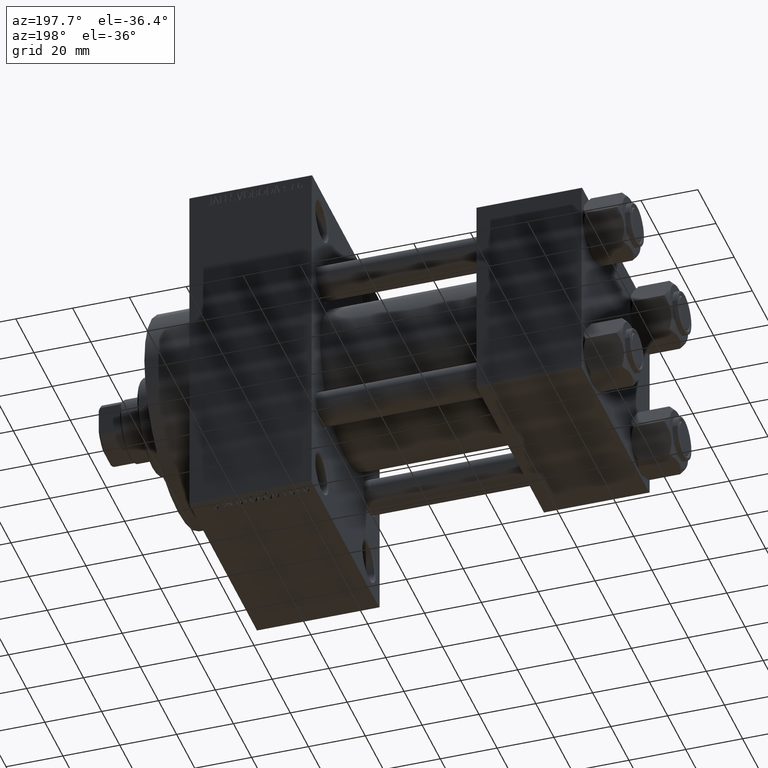
[diagram: clean part render]
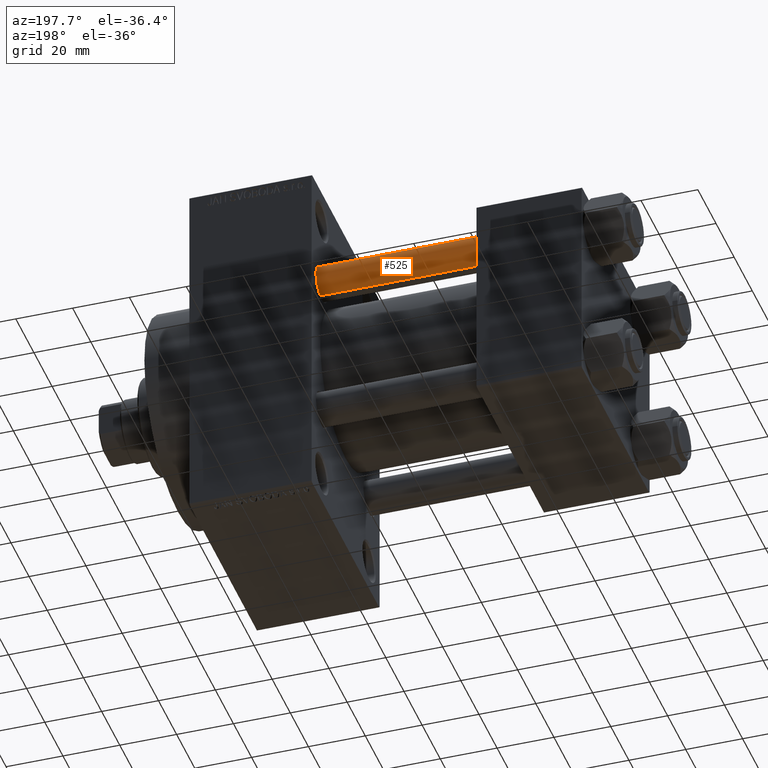
[diagram: same view with one face highlighted and labeled with its STEP entity id]
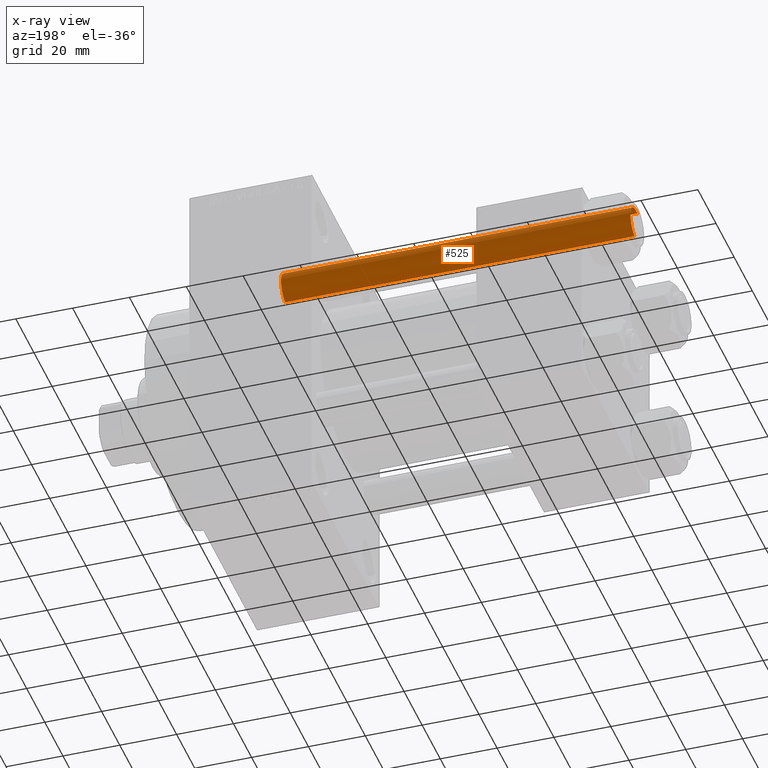
[diagram: x-ray of the same camera — body ghosted, the highlighted face saturated]
A machine part, auxiliary view. The second image highlights one B-rep face of the part: STEP entity #525.
The next image is the same camera in x-ray: the body ghosted, the highlighted face saturated — about 0% of this face is hidden behind the body in this view.
In plain terms, the highlighted cylindrical surface (edge-blend (fillet) strip) has radius 6 mm, axis along (-1, -0, 0).
Its self-contained STEP definition (entity closure, byte-faithful):
#145 = ORIENTED_EDGE ( 'NONE', *, *, #46303, .T. ) ;
#525 = ADVANCED_FACE ( 'NONE', ( #22151 ), #39805, .T. ) ;
#1676 = AXIS2_PLACEMENT_3D ( 'NONE', #7125, #11408, #47222 ) ;
#3043 = VERTEX_POINT ( 'NONE', #40361 ) ;
#3957 = DIRECTION ( 'NONE',  ( 1.000000000000000000, 0.000000000000000000, 0.000000000000000000 ) ) ;
#7125 = CARTESIAN_POINT ( 'NONE',  ( 0.000000000000000000, 0.000000000000000000, 124.0000000000000000 ) ) ;
#8671 = EDGE_CURVE ( 'NONE', #35459, #16015, #33731, .T. ) ;
#9274 = CARTESIAN_POINT ( 'NONE',  ( 6.000000000000000888, 7.347880794884120722E-16, 124.0000000000000000 ) ) ;
#10661 = CARTESIAN_POINT ( 'NONE',  ( 0.000000000000000000, 0.000000000000000000, 0.4999999999999865663 ) ) ;
#11408 = DIRECTION ( 'NONE',  ( -0.000000000000000000, -0.000000000000000000, -1.000000000000000000 ) ) ;
#11441 = CARTESIAN_POINT ( 'NONE',  ( 6.000000000000000888, 7.347880794884120722E-16, 0.4999999999999865663 ) ) ;
#12457 = CIRCLE ( 'NONE', #30006, 6.000000000000000888 ) ;
#13533 = AXIS2_PLACEMENT_3D ( 'NONE', #10661, #31900, #35729 ) ;
#14859 = ORIENTED_EDGE ( 'NONE', *, *, #22409, .T. ) ;
#15170 = ORIENTED_EDGE ( 'NONE', *, *, #8671, .F. ) ;
#15968 = EDGE_LOOP ( 'NONE', ( #20432, #14859, #145, #15170 ) ) ;
#16015 = VERTEX_POINT ( 'NONE', #45282 ) ;
#18286 = DIRECTION ( 'NONE',  ( 0.000000000000000000, 0.000000000000000000, -1.000000000000000000 ) ) ;
#19331 = LINE ( 'NONE', #9274, #41822 ) ;
#20112 = CARTESIAN_POINT ( 'NONE',  ( -6.000000000000000888, 0.000000000000000000, 124.0000000000000000 ) ) ;
#20432 = ORIENTED_EDGE ( 'NONE', *, *, #36243, .T. ) ;
#21258 = CARTESIAN_POINT ( 'NONE',  ( -6.000000000000000888, 0.000000000000000000, 123.5000000000000426 ) ) ;
#22151 = FACE_OUTER_BOUND ( 'NONE', #15968, .T. ) ;
#22409 = EDGE_CURVE ( 'NONE', #3043, #32885, #19331, .T. ) ;
#23455 = DIRECTION ( 'NONE',  ( -0.000000000000000000, -0.000000000000000000, -1.000000000000000000 ) ) ;
#30006 = AXIS2_PLACEMENT_3D ( 'NONE', #43818, #18286, #3957 ) ;
#31900 = DIRECTION ( 'NONE',  ( -0.000000000000000000, -0.000000000000000000, 1.000000000000000000 ) ) ;
#32885 = VERTEX_POINT ( 'NONE', #11441 ) ;
#33731 = LINE ( 'NONE', #20112, #41484 ) ;
#35459 = VERTEX_POINT ( 'NONE', #21258 ) ;
#35729 = DIRECTION ( 'NONE',  ( 1.000000000000000000, 0.000000000000000000, 0.000000000000000000 ) ) ;
#36243 = EDGE_CURVE ( 'NONE', #35459, #3043, #12457, .T. ) ;
#39805 = CYLINDRICAL_SURFACE ( 'NONE', #1676, 6.000000000000000888 ) ;
#40361 = CARTESIAN_POINT ( 'NONE',  ( 6.000000000000000888, 7.347880794884120722E-16, 123.5000000000000426 ) ) ;
#40972 = CIRCLE ( 'NONE', #13533, 6.000000000000000888 ) ;
#41484 = VECTOR ( 'NONE', #23455, 1000.000000000000000 ) ;
#41822 = VECTOR ( 'NONE', #45564, 1000.000000000000000 ) ;
#43818 = CARTESIAN_POINT ( 'NONE',  ( 0.000000000000000000, 0.000000000000000000, 123.5000000000000426 ) ) ;
#45282 = CARTESIAN_POINT ( 'NONE',  ( -6.000000000000000888, 0.000000000000000000, 0.4999999999999865663 ) ) ;
#45564 = DIRECTION ( 'NONE',  ( -0.000000000000000000, -0.000000000000000000, -1.000000000000000000 ) ) ;
#46303 = EDGE_CURVE ( 'NONE', #32885, #16015, #40972, .T. ) ;
#47222 = DIRECTION ( 'NONE',  ( -1.000000000000000000, 0.000000000000000000, 0.000000000000000000 ) ) ;